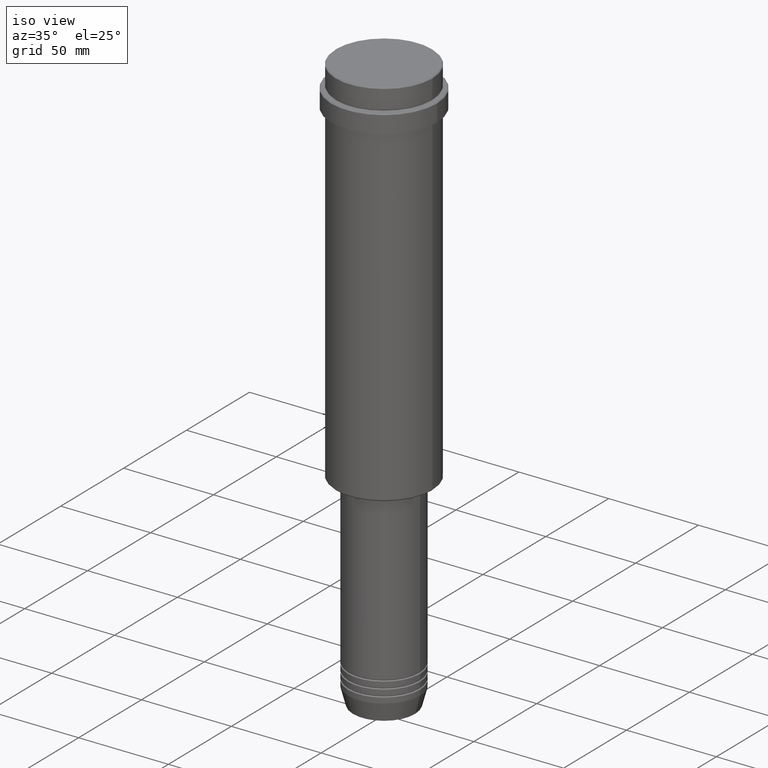
[diagram: clean part render]
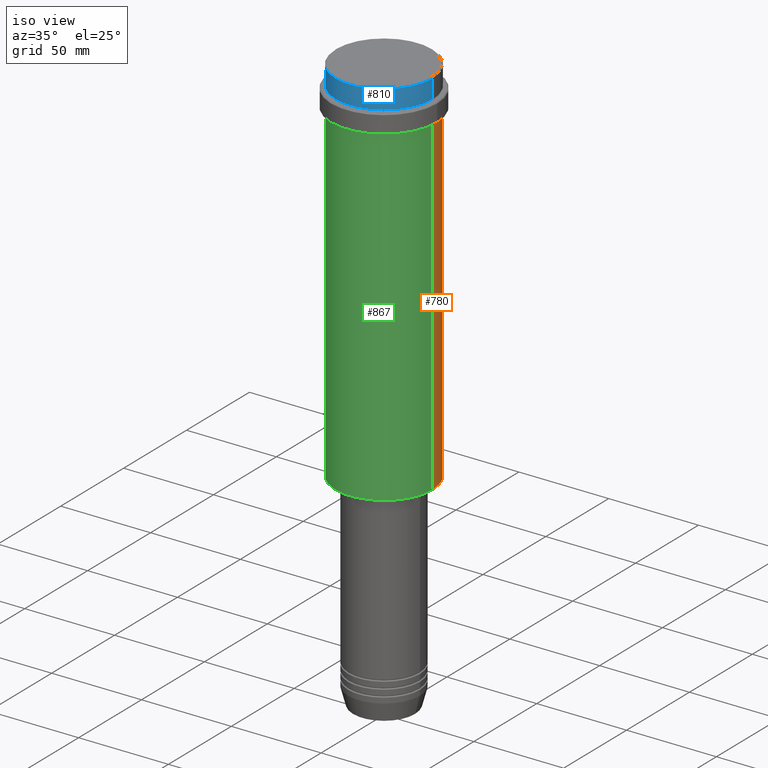
[diagram: same view with three faces highlighted in distinct colors, each labeled with its STEP entity id]
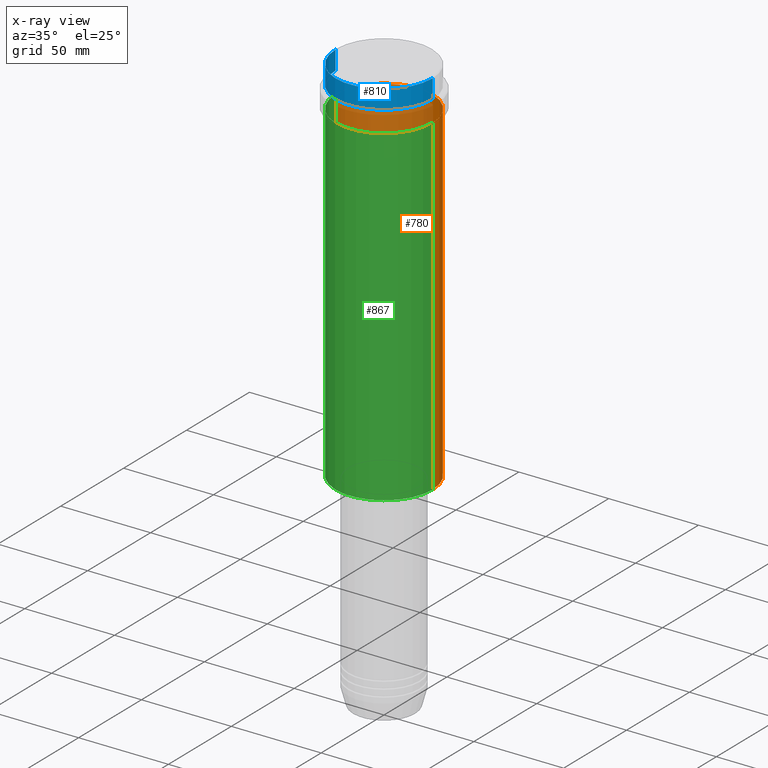
[diagram: x-ray of the same camera — body ghosted, the three highlighted faces saturated]
A machine part, iso view with three faces highlighted in distinct colors.
The next image is the same camera in x-ray (body ghosted, the three faces saturated) — at least one of them is partly hidden behind the body in this view.
Their STEP definitions:

[orange] entity #780 — the highlighted cylindrical surface (partial cylindrical patch) has radius 27 mm, axis along (-0, -0, 1).
#52 = AXIS2_PLACEMENT_3D ( 'NONE', #537, #77, #315 ) ;
#54 = DIRECTION ( 'NONE',  ( -0.000000000000000000, -0.000000000000000000, 1.000000000000000000 ) ) ;
#77 = DIRECTION ( 'NONE',  ( -0.000000000000000000, -0.000000000000000000, 1.000000000000000000 ) ) ;
#108 = EDGE_CURVE ( 'NONE', #723, #1051, #938, .T. ) ;
#215 = EDGE_CURVE ( 'NONE', #1209, #257, #774, .T. ) ;
#254 = DIRECTION ( 'NONE',  ( -0.000000000000000000, -0.000000000000000000, 1.000000000000000000 ) ) ;
#257 = VERTEX_POINT ( 'NONE', #1347 ) ;
#261 = AXIS2_PLACEMENT_3D ( 'NONE', #363, #254, #874 ) ;
#298 = DIRECTION ( 'NONE',  ( -0.000000000000000000, -0.000000000000000000, 1.000000000000000000 ) ) ;
#315 = DIRECTION ( 'NONE',  ( 1.000000000000000000, 0.000000000000000000, 0.000000000000000000 ) ) ;
#363 = CARTESIAN_POINT ( 'NONE',  ( 0.000000000000000000, 0.000000000000000000, -207.4999999999999716 ) ) ;
#429 = DIRECTION ( 'NONE',  ( -0.000000000000000000, -0.000000000000000000, 1.000000000000000000 ) ) ;
#501 = LINE ( 'NONE', #933, #1197 ) ;
#524 = CARTESIAN_POINT ( 'NONE',  ( 27.00000000000000355, 0.000000000000000000, 0.000000000000000000 ) ) ;
#537 = CARTESIAN_POINT ( 'NONE',  ( 0.000000000000000000, 0.000000000000000000, 0.000000000000000000 ) ) ;
#538 = ORIENTED_EDGE ( 'NONE', *, *, #215, .T. ) ;
#678 = EDGE_CURVE ( 'NONE', #257, #1051, #501, .T. ) ;
#680 = ORIENTED_EDGE ( 'NONE', *, *, #108, .F. ) ;
#723 = VERTEX_POINT ( 'NONE', #1129 ) ;
#754 = EDGE_CURVE ( 'NONE', #1209, #723, #1285, .T. ) ;
#774 = CIRCLE ( 'NONE', #261, 27.00000000000000355 ) ;
#780 = ADVANCED_FACE ( 'NONE', ( #848 ), #860, .T. ) ;
#848 = FACE_OUTER_BOUND ( 'NONE', #951, .T. ) ;
#860 = CYLINDRICAL_SURFACE ( 'NONE', #52, 27.00000000000000355 ) ;
#874 = DIRECTION ( 'NONE',  ( -1.000000000000000000, 0.000000000000000000, 0.000000000000000000 ) ) ;
#933 = CARTESIAN_POINT ( 'NONE',  ( -27.00000000000000355, 3.306546357697854128E-15, 0.000000000000000000 ) ) ;
#938 = CIRCLE ( 'NONE', #1264, 27.00000000000000355 ) ;
#942 = ORIENTED_EDGE ( 'NONE', *, *, #754, .F. ) ;
#951 = EDGE_LOOP ( 'NONE', ( #538, #1059, #680, #942 ) ) ;
#1027 = CARTESIAN_POINT ( 'NONE',  ( -27.00000000000000355, 3.306546357697854128E-15, -23.00000000000001421 ) ) ;
#1051 = VERTEX_POINT ( 'NONE', #1027 ) ;
#1059 = ORIENTED_EDGE ( 'NONE', *, *, #678, .T. ) ;
#1129 = CARTESIAN_POINT ( 'NONE',  ( 27.00000000000000355, 0.000000000000000000, -23.00000000000001421 ) ) ;
#1181 = CARTESIAN_POINT ( 'NONE',  ( 27.00000000000000355, 0.000000000000000000, -207.4999999999999716 ) ) ;
#1197 = VECTOR ( 'NONE', #54, 1000.000000000000000 ) ;
#1209 = VERTEX_POINT ( 'NONE', #1181 ) ;
#1264 = AXIS2_PLACEMENT_3D ( 'NONE', #1393, #298, #1266 ) ;
#1266 = DIRECTION ( 'NONE',  ( 1.000000000000000000, 0.000000000000000000, 0.000000000000000000 ) ) ;
#1285 = LINE ( 'NONE', #524, #1331 ) ;
#1331 = VECTOR ( 'NONE', #429, 1000.000000000000000 ) ;
#1347 = CARTESIAN_POINT ( 'NONE',  ( -27.00000000000000355, 3.306546357697854128E-15, -207.4999999999999716 ) ) ;
#1393 = CARTESIAN_POINT ( 'NONE',  ( 0.000000000000000000, 0.000000000000000000, -23.00000000000001421 ) ) ;

[blue] entity #810 — the highlighted cylindrical surface (partial cylindrical patch) has radius 27 mm, axis along (-0, -0, 1).
#70 = LINE ( 'NONE', #815, #916 ) ;
#86 = CARTESIAN_POINT ( 'NONE',  ( 0.000000000000000000, 0.000000000000000000, 0.000000000000000000 ) ) ;
#211 = DIRECTION ( 'NONE',  ( 1.000000000000000000, 0.000000000000000000, 0.000000000000000000 ) ) ;
#245 = CARTESIAN_POINT ( 'NONE',  ( -27.00000000000000355, 3.306546357697854128E-15, -11.00000000000000178 ) ) ;
#260 = EDGE_LOOP ( 'NONE', ( #504, #911, #1144, #514 ) ) ;
#278 = DIRECTION ( 'NONE',  ( 1.000000000000000000, 0.000000000000000000, 0.000000000000000000 ) ) ;
#310 = CIRCLE ( 'NONE', #1122, 27.00000000000000355 ) ;
#407 = DIRECTION ( 'NONE',  ( -0.000000000000000000, -0.000000000000000000, 1.000000000000000000 ) ) ;
#422 = EDGE_CURVE ( 'NONE', #891, #1255, #70, .T. ) ;
#434 = EDGE_CURVE ( 'NONE', #891, #1251, #310, .T. ) ;
#440 = EDGE_CURVE ( 'NONE', #1251, #753, #707, .T. ) ;
#504 = ORIENTED_EDGE ( 'NONE', *, *, #422, .F. ) ;
#514 = ORIENTED_EDGE ( 'NONE', *, *, #1206, .T. ) ;
#600 = DIRECTION ( 'NONE',  ( -0.000000000000000000, -0.000000000000000000, 1.000000000000000000 ) ) ;
#641 = CARTESIAN_POINT ( 'NONE',  ( 27.00000000000000355, 0.000000000000000000, -0.5000000000000350830 ) ) ;
#707 = LINE ( 'NONE', #1146, #1310 ) ;
#753 = VERTEX_POINT ( 'NONE', #641 ) ;
#810 = ADVANCED_FACE ( 'NONE', ( #1395 ), #1182, .T. ) ;
#815 = CARTESIAN_POINT ( 'NONE',  ( -27.00000000000000355, 3.306546357697854128E-15, 0.000000000000000000 ) ) ;
#891 = VERTEX_POINT ( 'NONE', #245 ) ;
#911 = ORIENTED_EDGE ( 'NONE', *, *, #434, .T. ) ;
#916 = VECTOR ( 'NONE', #407, 1000.000000000000000 ) ;
#970 = CARTESIAN_POINT ( 'NONE',  ( 0.000000000000000000, 0.000000000000000000, -0.5000000000000350830 ) ) ;
#1086 = CIRCLE ( 'NONE', #1199, 27.00000000000000355 ) ;
#1122 = AXIS2_PLACEMENT_3D ( 'NONE', #1353, #1256, #278 ) ;
#1144 = ORIENTED_EDGE ( 'NONE', *, *, #440, .T. ) ;
#1146 = CARTESIAN_POINT ( 'NONE',  ( 27.00000000000000355, 0.000000000000000000, 0.000000000000000000 ) ) ;
#1182 = CYLINDRICAL_SURFACE ( 'NONE', #1332, 27.00000000000000355 ) ;
#1199 = AXIS2_PLACEMENT_3D ( 'NONE', #970, #1299, #211 ) ;
#1206 = EDGE_CURVE ( 'NONE', #753, #1255, #1086, .T. ) ;
#1251 = VERTEX_POINT ( 'NONE', #1290 ) ;
#1255 = VERTEX_POINT ( 'NONE', #1304 ) ;
#1256 = DIRECTION ( 'NONE',  ( -0.000000000000000000, -0.000000000000000000, 1.000000000000000000 ) ) ;
#1290 = CARTESIAN_POINT ( 'NONE',  ( 27.00000000000000355, 0.000000000000000000, -11.00000000000000178 ) ) ;
#1299 = DIRECTION ( 'NONE',  ( 0.000000000000000000, 0.000000000000000000, -1.000000000000000000 ) ) ;
#1304 = CARTESIAN_POINT ( 'NONE',  ( -27.00000000000000355, 3.306546357697854128E-15, -0.5000000000000350830 ) ) ;
#1305 = DIRECTION ( 'NONE',  ( -0.000000000000000000, -0.000000000000000000, 1.000000000000000000 ) ) ;
#1310 = VECTOR ( 'NONE', #600, 1000.000000000000000 ) ;
#1332 = AXIS2_PLACEMENT_3D ( 'NONE', #86, #1305, #1410 ) ;
#1353 = CARTESIAN_POINT ( 'NONE',  ( 0.000000000000000000, 0.000000000000000000, -11.00000000000000178 ) ) ;
#1395 = FACE_OUTER_BOUND ( 'NONE', #260, .T. ) ;
#1410 = DIRECTION ( 'NONE',  ( 1.000000000000000000, 0.000000000000000000, 0.000000000000000000 ) ) ;

[green] entity #867 — the highlighted cylindrical surface (partial cylindrical patch) has radius 27 mm, axis along (-0, -0, 1).
#10 = DIRECTION ( 'NONE',  ( 1.000000000000000000, 0.000000000000000000, 0.000000000000000000 ) ) ;
#54 = DIRECTION ( 'NONE',  ( -0.000000000000000000, -0.000000000000000000, 1.000000000000000000 ) ) ;
#89 = ORIENTED_EDGE ( 'NONE', *, *, #678, .F. ) ;
#98 = CIRCLE ( 'NONE', #962, 27.00000000000000355 ) ;
#112 = DIRECTION ( 'NONE',  ( -0.000000000000000000, -0.000000000000000000, 1.000000000000000000 ) ) ;
#187 = FACE_OUTER_BOUND ( 'NONE', #368, .T. ) ;
#257 = VERTEX_POINT ( 'NONE', #1347 ) ;
#264 = CIRCLE ( 'NONE', #920, 27.00000000000000355 ) ;
#303 = EDGE_CURVE ( 'NONE', #1051, #723, #98, .T. ) ;
#333 = DIRECTION ( 'NONE',  ( -1.000000000000000000, 0.000000000000000000, 0.000000000000000000 ) ) ;
#368 = EDGE_LOOP ( 'NONE', ( #89, #1271, #593, #1330 ) ) ;
#429 = DIRECTION ( 'NONE',  ( -0.000000000000000000, -0.000000000000000000, 1.000000000000000000 ) ) ;
#442 = DIRECTION ( 'NONE',  ( -0.000000000000000000, -0.000000000000000000, 1.000000000000000000 ) ) ;
#445 = CARTESIAN_POINT ( 'NONE',  ( 0.000000000000000000, 0.000000000000000000, -207.4999999999999716 ) ) ;
#501 = LINE ( 'NONE', #933, #1197 ) ;
#507 = AXIS2_PLACEMENT_3D ( 'NONE', #1056, #112, #10 ) ;
#524 = CARTESIAN_POINT ( 'NONE',  ( 27.00000000000000355, 0.000000000000000000, 0.000000000000000000 ) ) ;
#593 = ORIENTED_EDGE ( 'NONE', *, *, #754, .T. ) ;
#621 = CYLINDRICAL_SURFACE ( 'NONE', #507, 27.00000000000000355 ) ;
#666 = DIRECTION ( 'NONE',  ( -0.000000000000000000, -0.000000000000000000, 1.000000000000000000 ) ) ;
#678 = EDGE_CURVE ( 'NONE', #257, #1051, #501, .T. ) ;
#723 = VERTEX_POINT ( 'NONE', #1129 ) ;
#754 = EDGE_CURVE ( 'NONE', #1209, #723, #1285, .T. ) ;
#867 = ADVANCED_FACE ( 'NONE', ( #187 ), #621, .T. ) ;
#920 = AXIS2_PLACEMENT_3D ( 'NONE', #445, #666, #333 ) ;
#933 = CARTESIAN_POINT ( 'NONE',  ( -27.00000000000000355, 3.306546357697854128E-15, 0.000000000000000000 ) ) ;
#962 = AXIS2_PLACEMENT_3D ( 'NONE', #1340, #442, #1230 ) ;
#972 = EDGE_CURVE ( 'NONE', #257, #1209, #264, .T. ) ;
#1027 = CARTESIAN_POINT ( 'NONE',  ( -27.00000000000000355, 3.306546357697854128E-15, -23.00000000000001421 ) ) ;
#1051 = VERTEX_POINT ( 'NONE', #1027 ) ;
#1056 = CARTESIAN_POINT ( 'NONE',  ( 0.000000000000000000, 0.000000000000000000, 0.000000000000000000 ) ) ;
#1129 = CARTESIAN_POINT ( 'NONE',  ( 27.00000000000000355, 0.000000000000000000, -23.00000000000001421 ) ) ;
#1181 = CARTESIAN_POINT ( 'NONE',  ( 27.00000000000000355, 0.000000000000000000, -207.4999999999999716 ) ) ;
#1197 = VECTOR ( 'NONE', #54, 1000.000000000000000 ) ;
#1209 = VERTEX_POINT ( 'NONE', #1181 ) ;
#1230 = DIRECTION ( 'NONE',  ( 1.000000000000000000, 0.000000000000000000, 0.000000000000000000 ) ) ;
#1271 = ORIENTED_EDGE ( 'NONE', *, *, #972, .T. ) ;
#1285 = LINE ( 'NONE', #524, #1331 ) ;
#1330 = ORIENTED_EDGE ( 'NONE', *, *, #303, .F. ) ;
#1331 = VECTOR ( 'NONE', #429, 1000.000000000000000 ) ;
#1340 = CARTESIAN_POINT ( 'NONE',  ( 0.000000000000000000, 0.000000000000000000, -23.00000000000001421 ) ) ;
#1347 = CARTESIAN_POINT ( 'NONE',  ( -27.00000000000000355, 3.306546357697854128E-15, -207.4999999999999716 ) ) ;